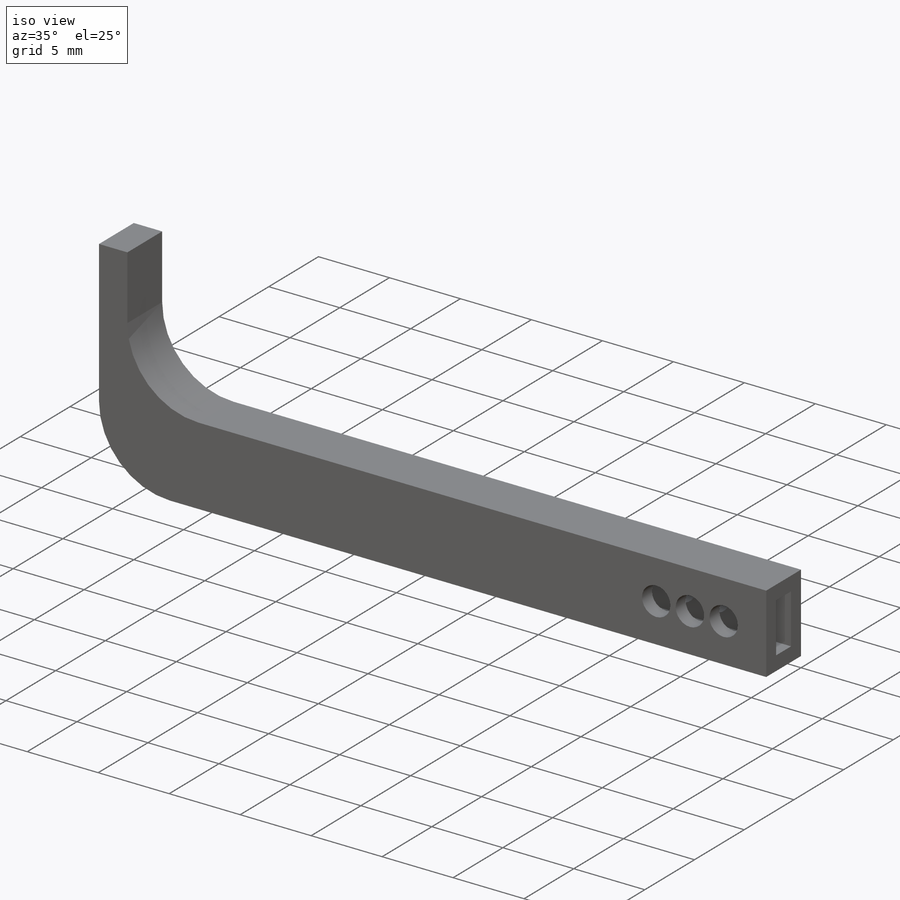
[diagram: iso view]
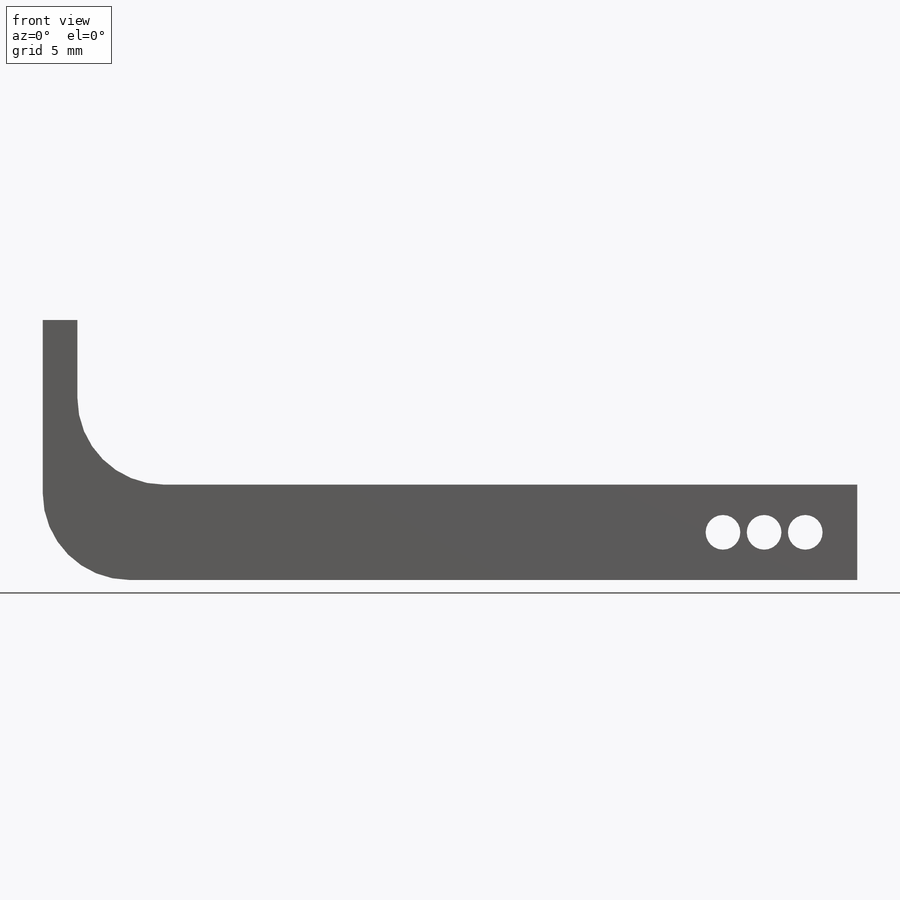
[diagram: front view]
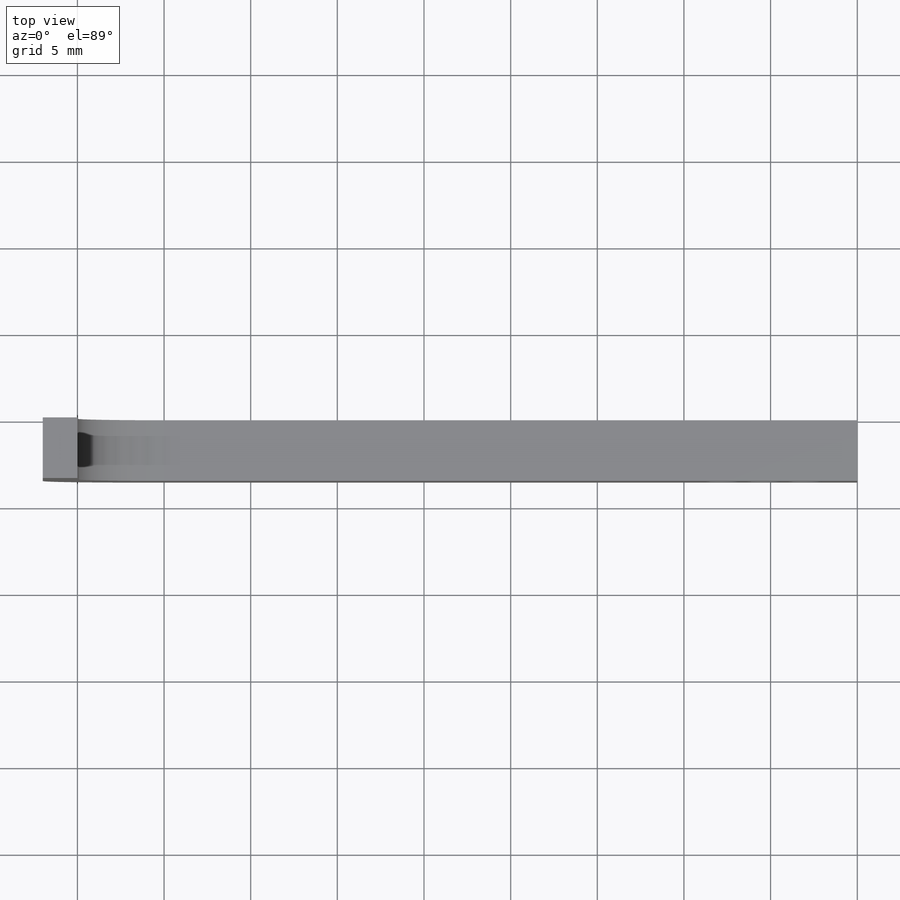
[diagram: top view]
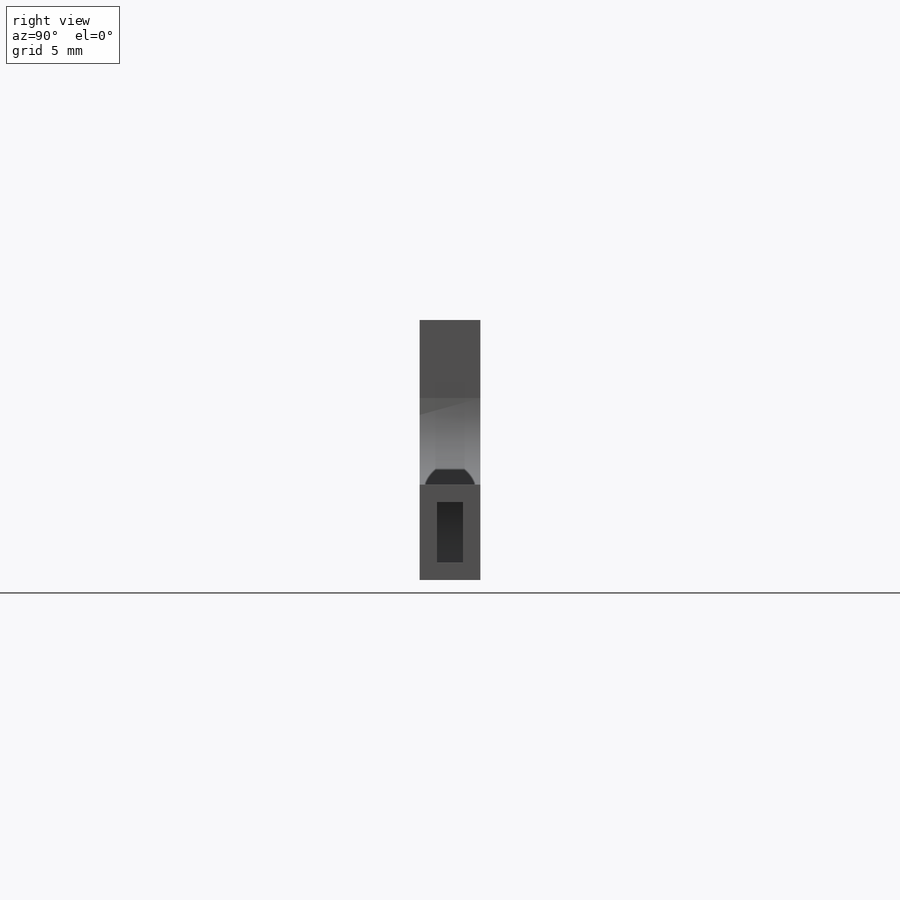
[diagram: right view]
SOLIDWORKS PART (.sldprt)
format: sldprt  version: not decoded by parser v0  size: 170,496 bytes
history: native  units: mm
features: plane x3, sketch x2, material x1, extrude x1, fillet x1, shell x1, cut_extrude x1 (+9 scaffold rows collapsed)
feature tree (19):
  scaffold x9  (default folders/planes/origin — collapsed)
  material  "Material <not specified>"
  plane  "Plan de face"
  plane  "Plan de dessus"
  plane  "Plan de droite"
  sketch  "Sketch1"  dims[D1=45.0mm D2=2.0mm D3=15.0mm D4=5.5mm]
  extrude  "Boss-Extrude1"  Depth=3.5mm
  fillet  "Fillet2"  Radius=5mm
  shell  "Shell1"  Thickness=1mm
  sketch  "Sketch2"  dims[c1.D1=2.0mm c1.D2=2.0mm c1.D3=2.0mm c1.D4=2.0mm c1.D5=2.0mm c1.D6=2.0mm c1.D7=2.0mm c1.D8=2.0mm c1.D9=2.0mm c1.D10=2.0mm c2.D4=4.75mm c2.D5=2.375mm c2.D6=3.0mm c2.D7=2.75mm c2.D8=2.75mm c2.D9=2.75mm c2.D10=2.75mm]
  cut_extrude  "Cut-Extrude1"  [1 undecoded]
decode coverage: 5 of 6 modeling features carry decoded parameters
note: 1 parameter value undecoded
note: suppression state not decoded; provenance and decode notes live in map.json
